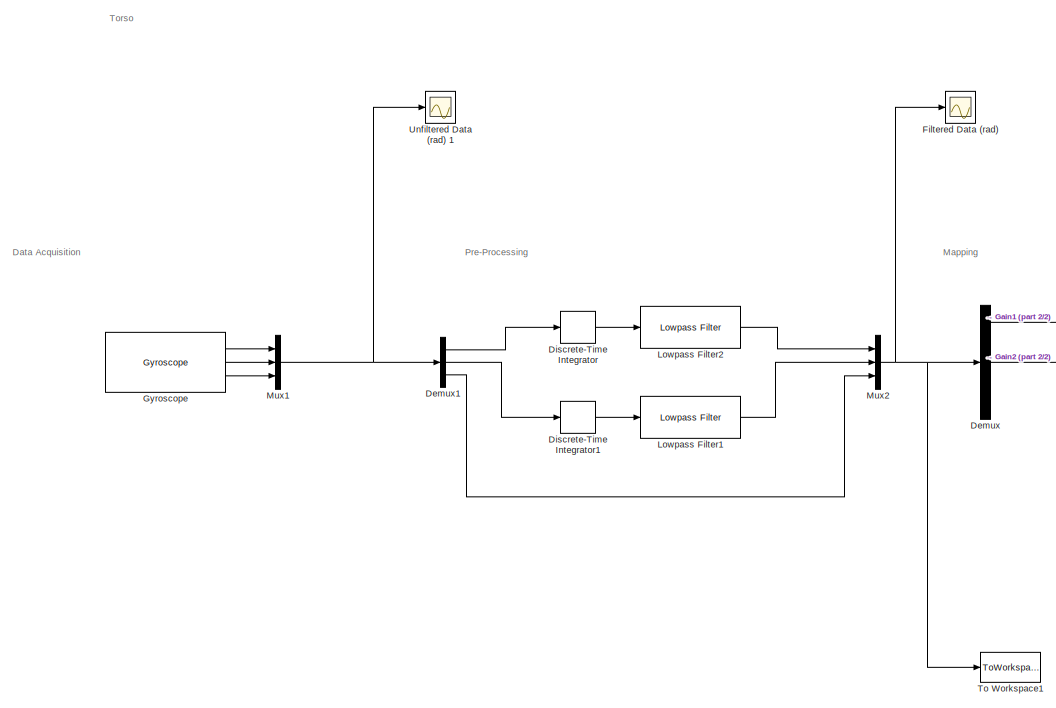
[diagram: root canvas - part 1/2, left side, full height]
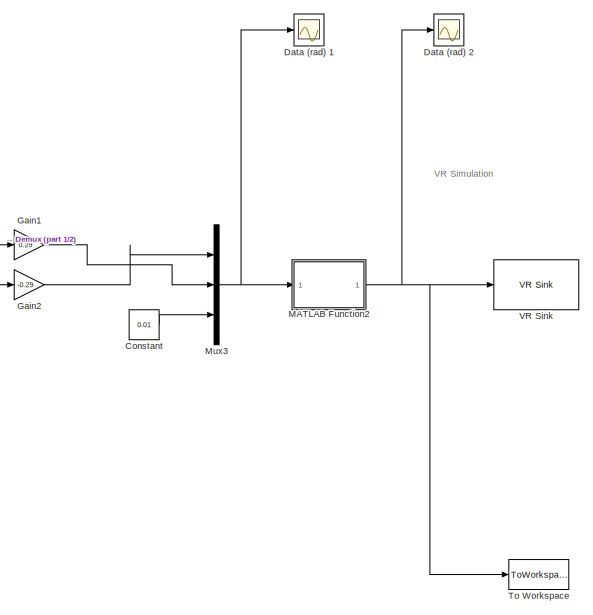
[diagram: root canvas - part 2/2, right side, full height]
MODEL slx_9820f8c9d77f
KIND model
CONFIG AbsTol = auto
CONFIG EnableMultiTasking = off
CONFIG FixedStep = auto
CONFIG MaxStep = auto
CONFIG MinStep = auto
CONFIG RelTol = 1e-3
CONFIG SampleTimeConstraint = Unconstrained
CONFIG SolverName = FixedStepAuto
CONFIG StartTime = 0.0
CONFIG StopTime = 90
BLOCK [Constant] Constant
  Value = 0.01
BLOCK [Scope] Data (rad) 1
  Floating = off
  NumInputPorts = 1
  Ports = [1]
  ScopeSpecificationString = Simulink.scopes.TimeScopeBlockCfg('CurrentConfiguration', extmgr.ConfigurationSet(extmgr.Configuration('Core','General UI',true),extmgr.Configuration('Core','Source UI',true),extmgr.Configuration('Sources','WiredSimulink',true,'DataLoggingVariableName','ScopeData1'),extmgr.Configuration('Visuals','Time Domain',true,'SerializedDisplays',{struct('MinYLimReal','-0.2563','MaxYLimReal','0.21399','YLabe...<+1435ch>
BLOCK [Scope] Data (rad) 2
  Floating = off
  NumInputPorts = 1
  Ports = [1]
  ScopeSpecificationString = Simulink.scopes.TimeScopeBlockCfg('CurrentConfiguration', extmgr.ConfigurationSet(extmgr.Configuration('Core','General UI',true),extmgr.Configuration('Core','Source UI',true),extmgr.Configuration('Sources','WiredSimulink',true,'DataLoggingVariableName','ScopeData2'),extmgr.Configuration('Visuals','Time Domain',true,'SerializedDisplays',{struct('MinYLimReal','-0.11256','MaxYLimReal','0.10604','YLab...<+1472ch>
BLOCK [Demux] Demux
  Outputs = 3
  Ports = [1, 3]
BLOCK [Demux] Demux1
  Outputs = 3
  Ports = [1, 3]
BLOCK [DiscreteIntegrator] Discrete-Time Integrator
  ICPrevOutput = DiscIntNeverNeededParam
  ICPrevScaledInput = DiscIntNeverNeededParam
  InitialConditionSetting = Auto
  Ports = [1, 1]
  SampleTime = -1
BLOCK [DiscreteIntegrator] Discrete-Time Integrator1
  ICPrevOutput = DiscIntNeverNeededParam
  ICPrevScaledInput = DiscIntNeverNeededParam
  InitialConditionSetting = Auto
  Ports = [1, 1]
  SampleTime = -1
BLOCK [Scope] Filtered Data (rad)  
  Floating = off
  NumInputPorts = 1
  Ports = [1]
  ScopeSpecificationString = Simulink.scopes.TimeScopeBlockCfg('CurrentConfiguration', extmgr.ConfigurationSet(extmgr.Configuration('Core','General UI',true),extmgr.Configuration('Core','Source UI',true),extmgr.Configuration('Sources','WiredSimulink',true,'DataLoggingVariableName','ScopeData1'),extmgr.Configuration('Visuals','Time Domain',true,'SerializedDisplays',{struct('MinYLimReal','-0.04727','MaxYLimReal','0.59911','YLab...<+1456ch>
BLOCK [Gain] Gain1
  Gain = 0.29
  OutDataTypeStr = Inherit: Inherit via back propagation
BLOCK [Gain] Gain2
  Gain = -0.29
  OutDataTypeStr = Inherit: Inherit via back propagation
BLOCK [Reference] Gyroscope  REF=androidsensorlib/Gyroscope
  Ports = [0, 3]
  SourceBlock = androidsensorlib/Gyroscope
  SourceProductBaseCode = ANDROID
  SourceType = codertarget.internal.androidGyroscope
BLOCK [Reference] Lowpass Filter1  REF=dspfdesign/Lowpass Filter
  Ports = [1, 1]
  SourceBlock = dspfdesign/Lowpass Filter
  SourceProductBaseCode = DS
  SourceType = dsp.LowpassFilter
BLOCK [Reference] Lowpass Filter2  REF=dspfdesign/Lowpass Filter
  Ports = [1, 1]
  SourceBlock = dspfdesign/Lowpass Filter
  SourceProductBaseCode = DS
  SourceType = dsp.LowpassFilter
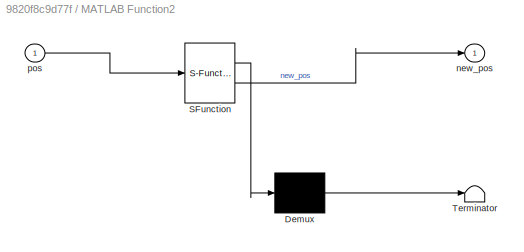
BLOCK [SubSystem] MATLAB Function2
  ErrorFcn = Stateflow.Translate.translate
  PermitHierarchicalResolution = ExplicitOnly
  Ports = [1, 1]
  RequestExecContextInheritance = off
  SFBlockType = MATLAB Function
  TreatAsAtomicUnit = on
BLOCK [Demux] MATLAB Function2/ Demux 
  Outputs = 1
  Ports = [1, 1]
BLOCK [S-Function] MATLAB Function2/ SFunction 
  EnableBusSupport = on
  FunctionName = sf_sfun
  PortCounts = [1 2]
  Ports = [1, 2]
  SFcnIsStateOwnerBlock = off
  SFunctionDeploymentMode = off
  Tag = Stateflow S-Function 2
BLOCK [Terminator] MATLAB Function2/ Terminator 
BLOCK [Outport] MATLAB Function2/new_pos
BLOCK [Inport] MATLAB Function2/pos
BLOCK [Mux] Mux1
  DisplayOption = bar
  Inputs = 3
  Ports = [3, 1]
BLOCK [Mux] Mux2
  DisplayOption = bar
  Inputs = 3
  Ports = [3, 1]
BLOCK [Mux] Mux3
  DisplayOption = bar
  Inputs = 3
  Ports = [3, 1]
BLOCK [ToWorkspace] To Workspace
  MaxDataPoints = inf
  Ports = [1]
  SampleTime = -1
  SaveFormat = Structure
  VariableName = DataTorso
BLOCK [ToWorkspace] To Workspace1
  MaxDataPoints = inf
  Ports = [1]
  SampleTime = -1
  SaveFormat = Structure
  VariableName = FilteredDataTorso
BLOCK [Scope] Unfiltered Data (rad)  1
  Floating = off
  NumInputPorts = 1
  Ports = [1]
  ScopeSpecificationString = Simulink.scopes.TimeScopeBlockCfg('CurrentConfiguration', extmgr.ConfigurationSet(extmgr.Configuration('Core','General UI',true),extmgr.Configuration('Core','Source UI',true),extmgr.Configuration('Sources','WiredSimulink',true,'DataLoggingVariableName','ScopeData1'),extmgr.Configuration('Visuals','Time Domain',true,'SerializedDisplays',{struct('MinYLimReal','-0.95905','MaxYLimReal','1.03937','YLab...<+1477ch>
BLOCK [Reference] VR Sink  REF=vrlib/VR Sink
  InstantiateOnLoad = on
  Ports = [1]
  SourceBlock = vrlib/VR Sink
  SourceProductBaseCode = SL
  SourceType = Virtual Reality Sink
ANNOTATION (root): Data Acquisition
ANNOTATION (root): Mapping
ANNOTATION (root): Pre-Processing
ANNOTATION (root): Torso
ANNOTATION (root): VR Simulation
LINE Constant:1 -> Mux3:3
LINE Demux1:1 -> Discrete-Time Integrator:1
LINE Demux1:2 -> Discrete-Time Integrator1:1
LINE Demux1:3 -> Mux2:3
LINE Demux:1 -> Gain1:1
LINE Demux:2 -> Gain2:1
LINE Discrete-Time Integrator1:1 -> Lowpass Filter1:1
LINE Discrete-Time Integrator:1 -> Lowpass Filter2:1
LINE Gain1:1 -> Mux3:2
LINE Gain2:1 -> Mux3:1
LINE Gyroscope:1 -> Mux1:1
LINE Gyroscope:2 -> Mux1:2
LINE Gyroscope:3 -> Mux1:3
LINE Lowpass Filter1:1 -> Mux2:2
LINE Lowpass Filter2:1 -> Mux2:1
NET MATLAB Function2:1 -> Data (rad) 2:1, To Workspace:1, VR Sink:1
NET Mux1:1 -> Demux1:1, Unfiltered Data (rad)  1:1
NET Mux2:1 -> Demux:1, Filtered Data (rad)  :1, To Workspace1:1
NET Mux3:1 -> Data (rad) 1:1, MATLAB Function2:1
note: NET lines group one-source signal fan-out (src -> all destinations, sorted); 1:1 wires keep LINE
CHART MATLAB Function2 states=1 transitions=1
  STATE_LABEL 'eML_blk_kernel()'
  STATE_LABEL 'SCRIPT:\nfunction new_pos = map(pos)\n\nnew_pos = double(pos); \n%define theta \ntheta = atan2(pos(2),pos(1)); \n\n\nif norm(pos(1)) > norm(0.1*cos(theta))\n    new_pos(1) = 0.1 * cos(theta)   \nelse\n    new_pos(1) = pos(1)\nend\n\nif norm(pos(2)) > norm(0.1*sin(theta))\n    new_pos(2) = 0.1 * sin(theta) \nelse\n    new_pos(2) = pos(2) \nend \n\nnew_pos(3) = pos(3) \n\n\nend '
CHART  states=0 transitions=0
